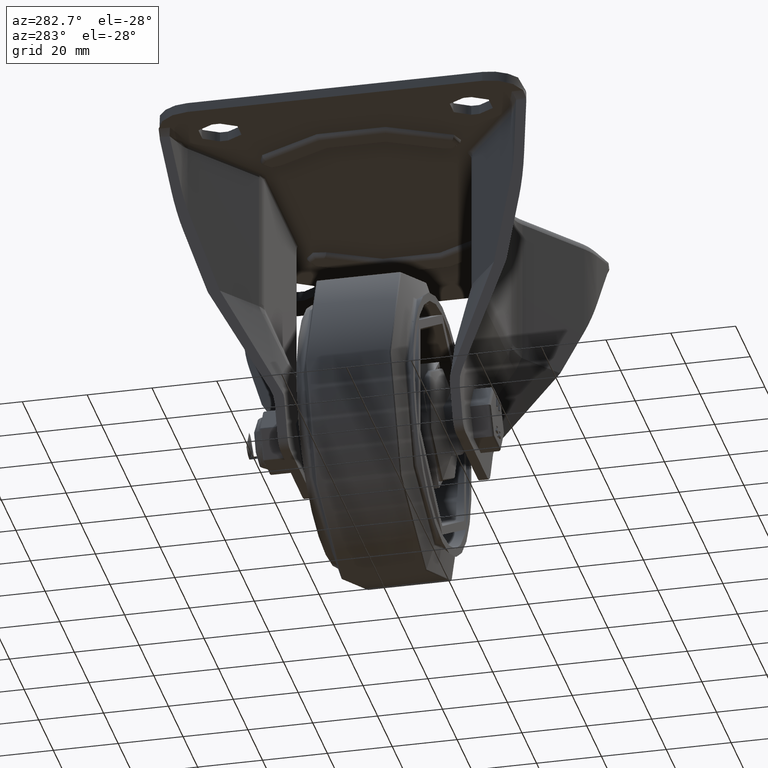
[diagram: clean part render]
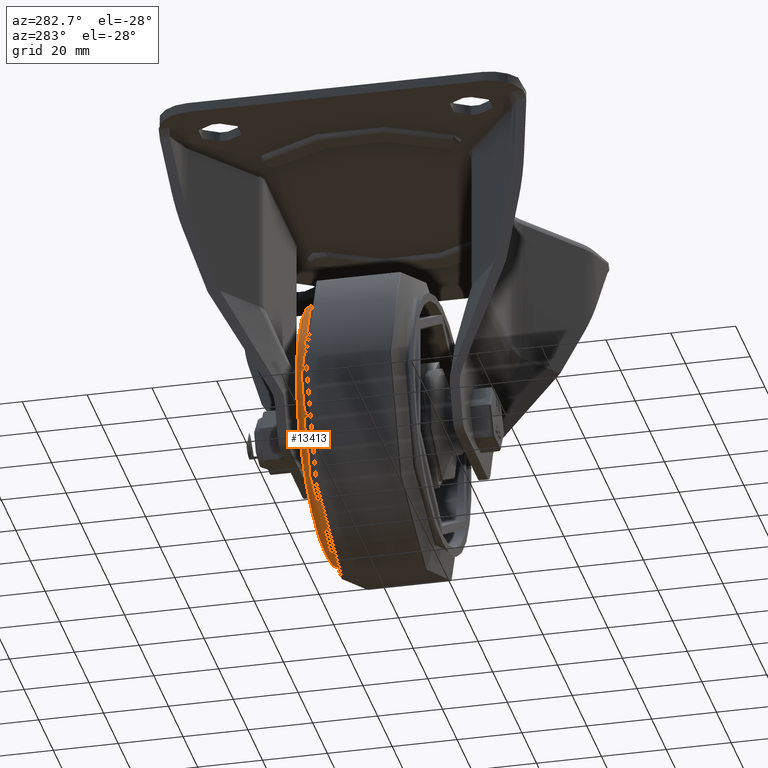
[diagram: same view with one face highlighted and labeled with its STEP entity id]
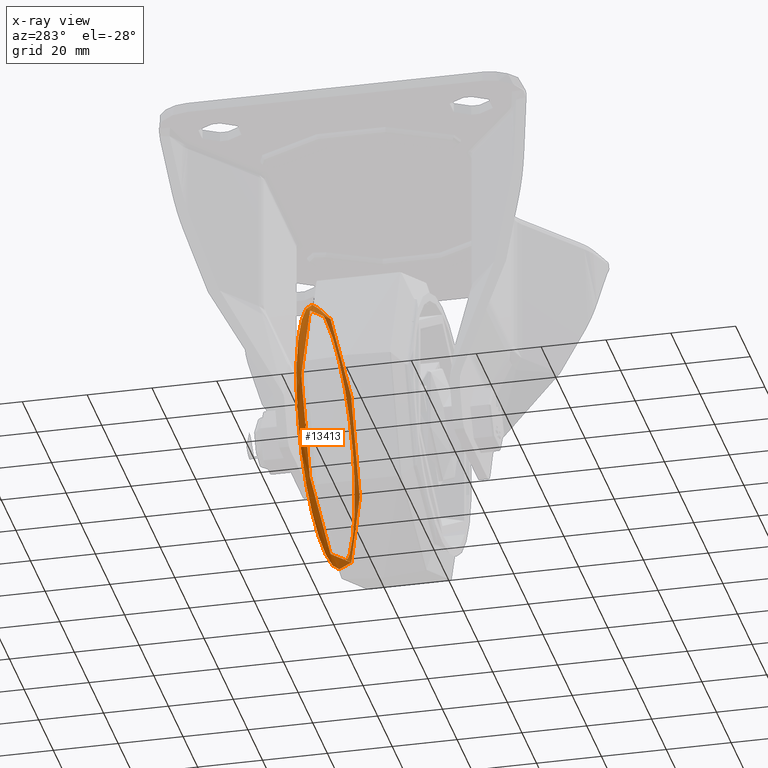
[diagram: x-ray of the same camera — body ghosted, the highlighted face saturated]
A machine part, auxiliary view. The second image highlights one B-rep face of the part: STEP entity #13413.
The next image is the same camera in x-ray: the body ghosted, the highlighted face saturated — about 36% of this face is hidden behind the body in this view.
In plain terms, the highlighted cylindrical surface (bore or boss wall) has radius 40 mm, axis along (0, -1, 0).
Its self-contained STEP definition (entity closure, byte-faithful):
#1854=FACE_OUTER_BOUND('',#2691,.T.);
#2691=EDGE_LOOP('',(#10223,#10224,#10225,#10226,#10227));
#3664=LINE('',#29984,#4523);
#4523=VECTOR('',#16453,40.);
#5294=CIRCLE('',#14566,40.);
#5295=CIRCLE('',#14567,40.);
#5296=CIRCLE('',#14568,40.);
#6021=VERTEX_POINT('',#29980);
#6022=VERTEX_POINT('',#29981);
#6023=VERTEX_POINT('',#29983);
#7572=EDGE_CURVE('',#6021,#6022,#5294,.T.);
#7573=EDGE_CURVE('',#6021,#6023,#3664,.T.);
#7574=EDGE_CURVE('',#6023,#6023,#5295,.T.);
#7575=EDGE_CURVE('',#6022,#6021,#5296,.T.);
#10223=ORIENTED_EDGE('',*,*,#7572,.F.);
#10224=ORIENTED_EDGE('',*,*,#7573,.T.);
#10225=ORIENTED_EDGE('',*,*,#7574,.F.);
#10226=ORIENTED_EDGE('',*,*,#7573,.F.);
#10227=ORIENTED_EDGE('',*,*,#7575,.F.);
#13042=CYLINDRICAL_SURFACE('',#14565,40.);
#13413=ADVANCED_FACE('',(#1854),#13042,.T.);
#14565=AXIS2_PLACEMENT_3D('',#29979,#16449,#16450);
#14566=AXIS2_PLACEMENT_3D('',#29982,#16451,#16452);
#14567=AXIS2_PLACEMENT_3D('',#29985,#16454,#16455);
#14568=AXIS2_PLACEMENT_3D('',#29986,#16456,#16457);
#16449=DIRECTION('center_axis',(0.,-1.,0.));
#16450=DIRECTION('ref_axis',(0.,0.,1.));
#16451=DIRECTION('center_axis',(0.,-1.,0.));
#16452=DIRECTION('ref_axis',(-1.22464679914735E-16,0.,-1.));
#16453=DIRECTION('',(0.,1.,0.));
#16454=DIRECTION('center_axis',(0.,1.,2.77555756156289E-15));
#16455=DIRECTION('ref_axis',(0.,-2.77555756156289E-15,1.));
#16456=DIRECTION('center_axis',(0.,-1.,0.));
#16457=DIRECTION('ref_axis',(-1.22464679914735E-16,0.,-1.));
#29979=CARTESIAN_POINT('Origin',(0.,16.875,0.));
#29980=CARTESIAN_POINT('',(-9.79717439317882E-15,16.4914624167438,-40.));
#29981=CARTESIAN_POINT('',(-1.28189897098414E-29,16.4914624167438,40.));
#29982=CARTESIAN_POINT('Origin',(0.,16.4914624167438,0.));
#29983=CARTESIAN_POINT('',(-4.89858719658941E-15,18.0000000000001,-40.));
#29984=CARTESIAN_POINT('',(4.89858719658941E-15,16.875,-40.));
#29985=CARTESIAN_POINT('Origin',(0.,18.,0.));
#29986=CARTESIAN_POINT('Origin',(0.,16.4914624167438,0.));